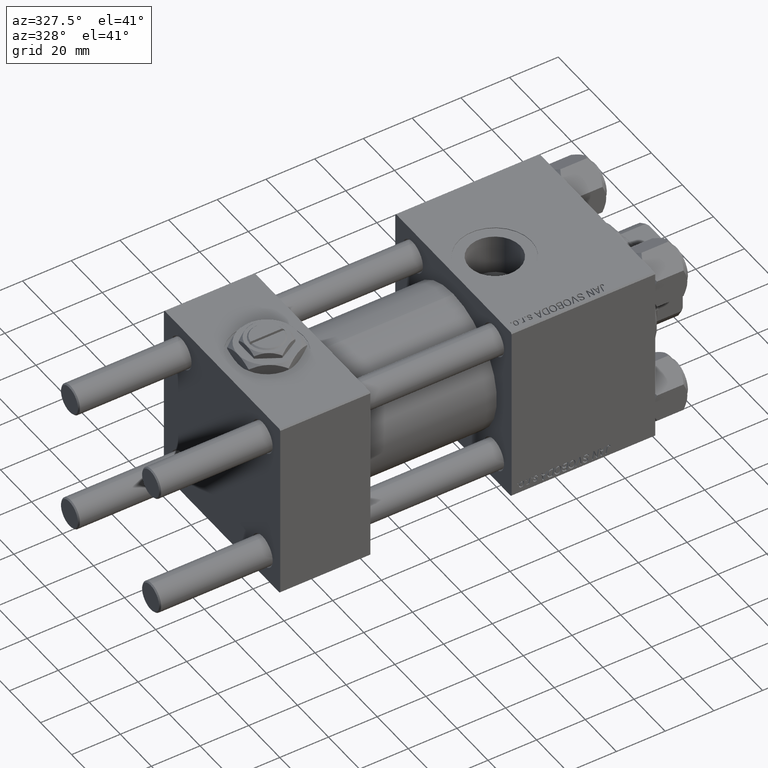
[diagram: clean part render]
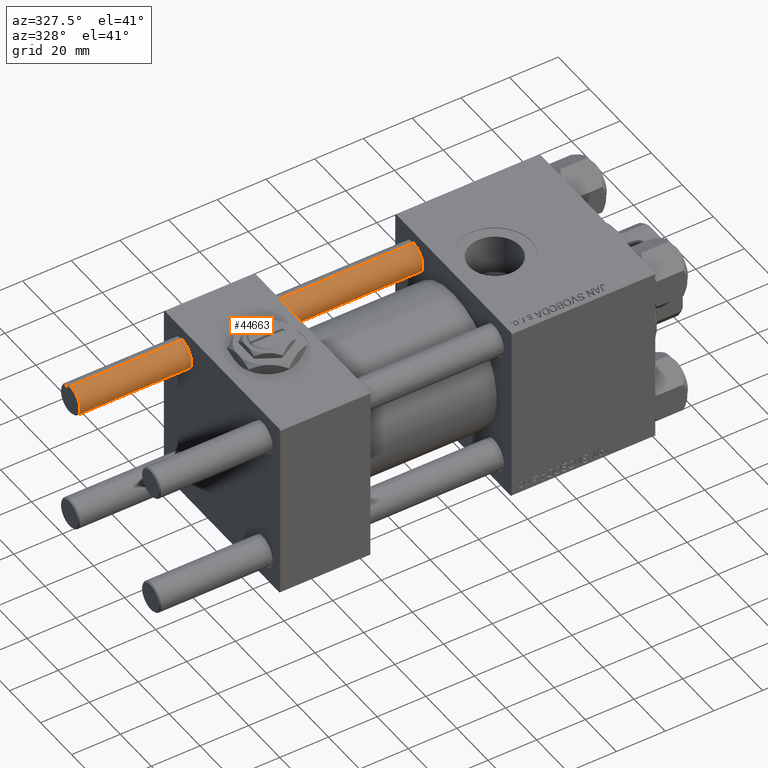
[diagram: same view with one face highlighted and labeled with its STEP entity id]
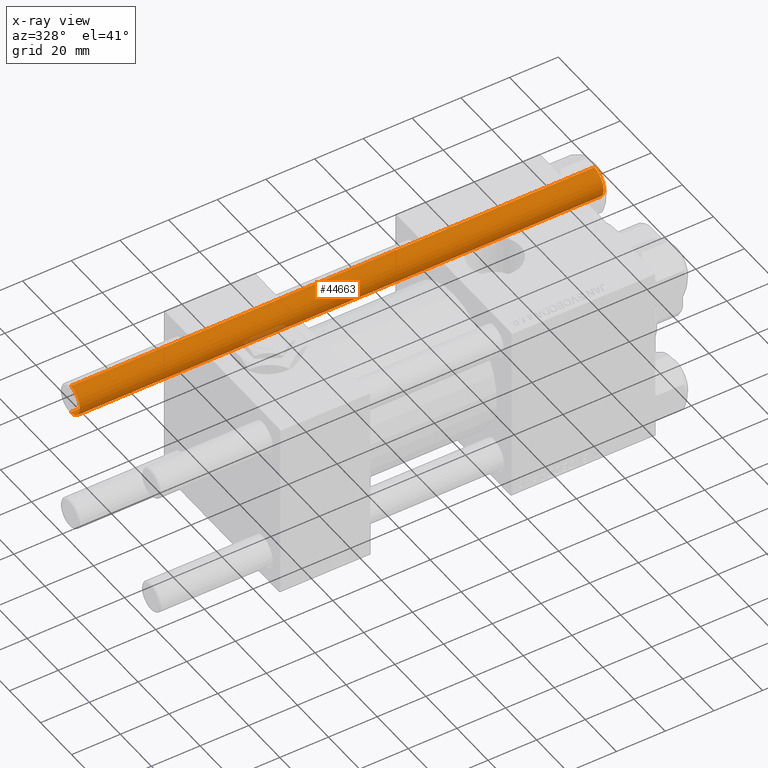
[diagram: x-ray of the same camera — body ghosted, the highlighted face saturated]
A machine part, auxiliary view. The second image highlights one B-rep face of the part: STEP entity #44663.
The next image is the same camera in x-ray: the body ghosted, the highlighted face saturated — about 1% of this face is hidden behind the body in this view.
In plain terms, the highlighted cylindrical surface (edge-blend (fillet) strip) has radius 6 mm, axis along (-1, -0, -0).
Its self-contained STEP definition (entity closure, byte-faithful):
#340 = CARTESIAN_POINT ( 'NONE',  ( 6.000000000000000888, 7.347880794884120722E-16, 216.0000000000000000 ) ) ;
#2218 = CARTESIAN_POINT ( 'NONE',  ( -6.000000000000000888, 0.000000000000000000, 0.5000000000000004441 ) ) ;
#3283 = EDGE_CURVE ( 'NONE', #30303, #18392, #3352, .T. ) ;
#3352 = CIRCLE ( 'NONE', #35965, 6.000000000000000888 ) ;
#4181 = EDGE_CURVE ( 'NONE', #32960, #30303, #12413, .T. ) ;
#4926 = CIRCLE ( 'NONE', #9104, 6.000000000000000888 ) ;
#9104 = AXIS2_PLACEMENT_3D ( 'NONE', #26294, #30217, #42256 ) ;
#10983 = CARTESIAN_POINT ( 'NONE',  ( -6.000000000000000888, 0.000000000000000000, 215.5000000000000284 ) ) ;
#12413 = LINE ( 'NONE', #28368, #23448 ) ;
#15926 = VERTEX_POINT ( 'NONE', #35956 ) ;
#17579 = CYLINDRICAL_SURFACE ( 'NONE', #43199, 6.000000000000000888 ) ;
#18392 = VERTEX_POINT ( 'NONE', #33599 ) ;
#20637 = ORIENTED_EDGE ( 'NONE', *, *, #4181, .T. ) ;
#23049 = DIRECTION ( 'NONE',  ( -1.000000000000000000, 0.000000000000000000, 0.000000000000000000 ) ) ;
#23448 = VECTOR ( 'NONE', #24452, 1000.000000000000000 ) ;
#24452 = DIRECTION ( 'NONE',  ( -0.000000000000000000, -0.000000000000000000, -1.000000000000000000 ) ) ;
#25482 = VECTOR ( 'NONE', #37192, 1000.000000000000000 ) ;
#26294 = CARTESIAN_POINT ( 'NONE',  ( 0.000000000000000000, 0.000000000000000000, 215.5000000000000284 ) ) ;
#27270 = ORIENTED_EDGE ( 'NONE', *, *, #3283, .T. ) ;
#28368 = CARTESIAN_POINT ( 'NONE',  ( -6.000000000000000888, 0.000000000000000000, 216.0000000000000000 ) ) ;
#30217 = DIRECTION ( 'NONE',  ( 0.000000000000000000, 0.000000000000000000, -1.000000000000000000 ) ) ;
#30303 = VERTEX_POINT ( 'NONE', #2218 ) ;
#32960 = VERTEX_POINT ( 'NONE', #10983 ) ;
#33599 = CARTESIAN_POINT ( 'NONE',  ( 6.000000000000000888, 7.347880794884120722E-16, 0.5000000000000004441 ) ) ;
#35348 = CARTESIAN_POINT ( 'NONE',  ( 0.000000000000000000, 0.000000000000000000, 216.0000000000000000 ) ) ;
#35906 = DIRECTION ( 'NONE',  ( -0.000000000000000000, -0.000000000000000000, 1.000000000000000000 ) ) ;
#35956 = CARTESIAN_POINT ( 'NONE',  ( 6.000000000000000888, 7.347880794884120722E-16, 215.5000000000000284 ) ) ;
#35965 = AXIS2_PLACEMENT_3D ( 'NONE', #43755, #35906, #39835 ) ;
#37172 = EDGE_CURVE ( 'NONE', #15926, #32960, #4926, .T. ) ;
#37192 = DIRECTION ( 'NONE',  ( -0.000000000000000000, -0.000000000000000000, -1.000000000000000000 ) ) ;
#37455 = FACE_OUTER_BOUND ( 'NONE', #46851, .T. ) ;
#38142 = ORIENTED_EDGE ( 'NONE', *, *, #40673, .F. ) ;
#38718 = ORIENTED_EDGE ( 'NONE', *, *, #37172, .T. ) ;
#39835 = DIRECTION ( 'NONE',  ( 1.000000000000000000, 0.000000000000000000, 0.000000000000000000 ) ) ;
#40673 = EDGE_CURVE ( 'NONE', #15926, #18392, #45061, .T. ) ;
#42256 = DIRECTION ( 'NONE',  ( 1.000000000000000000, 0.000000000000000000, 0.000000000000000000 ) ) ;
#43199 = AXIS2_PLACEMENT_3D ( 'NONE', #35348, #50561, #23049 ) ;
#43755 = CARTESIAN_POINT ( 'NONE',  ( 0.000000000000000000, 0.000000000000000000, 0.5000000000000004441 ) ) ;
#44663 = ADVANCED_FACE ( 'NONE', ( #37455 ), #17579, .T. ) ;
#45061 = LINE ( 'NONE', #340, #25482 ) ;
#46851 = EDGE_LOOP ( 'NONE', ( #38142, #38718, #20637, #27270 ) ) ;
#50561 = DIRECTION ( 'NONE',  ( -0.000000000000000000, -0.000000000000000000, -1.000000000000000000 ) ) ;